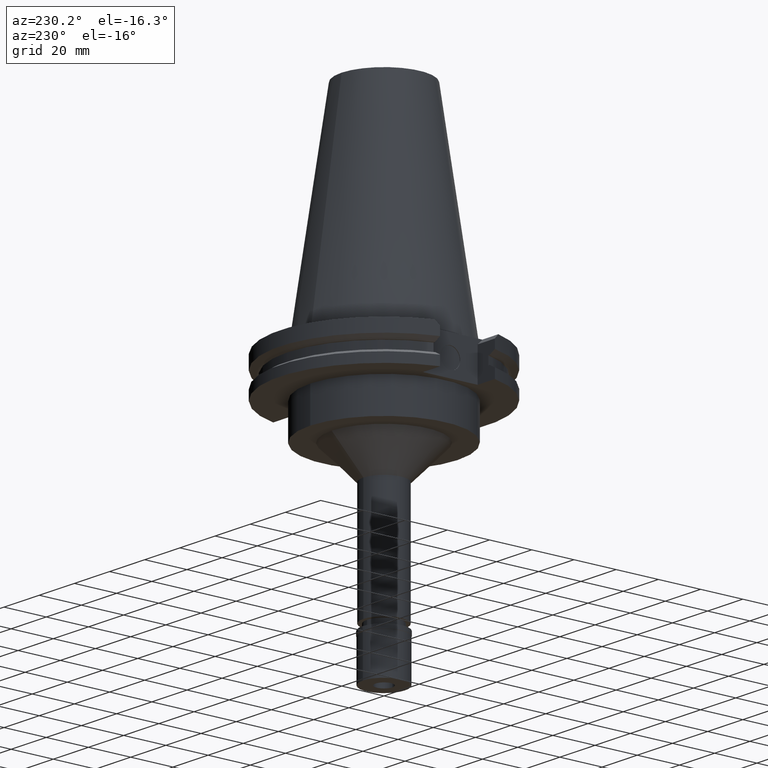
[diagram: clean part render]
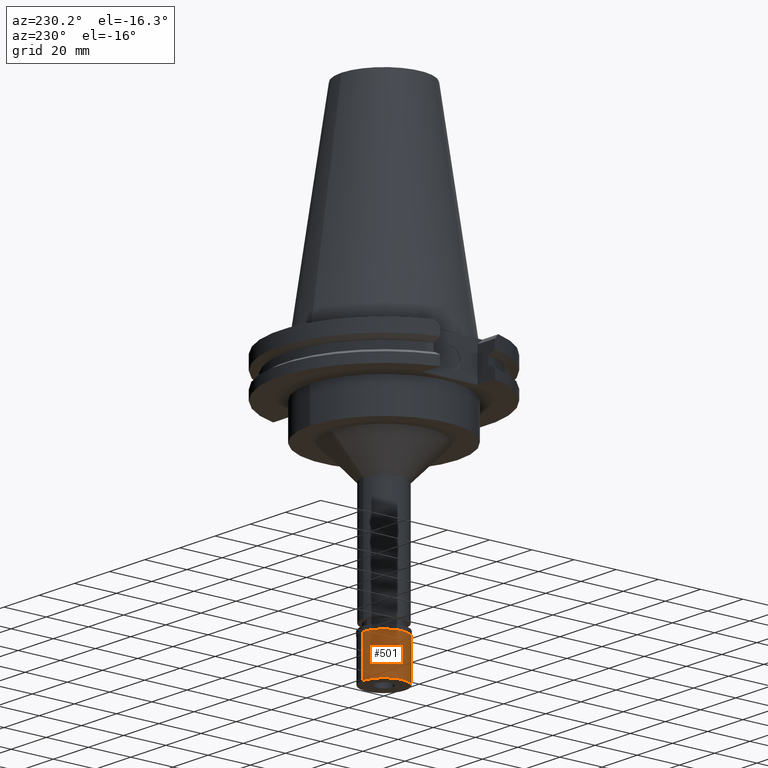
[diagram: same view with one face highlighted and labeled with its STEP entity id]
A machine part, auxiliary view. The second image highlights one B-rep face of the part: STEP entity #501.
In plain terms, the highlighted cylindrical surface (edge-blend (fillet) strip) has radius 10 mm, axis along (0, 0, -1).
Its self-contained STEP definition (entity closure, byte-faithful):
#203 = AXIS2_PLACEMENT_3D ( 'NONE', #3310, #2064, #1548 ) ;
#219 = VERTEX_POINT ( 'NONE', #1404 ) ;
#295 = CARTESIAN_POINT ( 'NONE',  ( 0.0000000000000000000, 10.00000000000000000, -2.100000000000000089 ) ) ;
#387 = CIRCLE ( 'NONE', #2614, 10.00000000000000000 ) ;
#389 = CARTESIAN_POINT ( 'NONE',  ( 0.0000000000000000000, -10.00000000000000000, -2.100000000000000089 ) ) ;
#465 = VERTEX_POINT ( 'NONE', #2359 ) ;
#501 = ADVANCED_FACE ( 'NONE', ( #3044 ), #749, .T. ) ;
#515 = DIRECTION ( 'NONE',  ( 0.0000000000000000000, 0.0000000000000000000, -1.000000000000000000 ) ) ;
#534 = LINE ( 'NONE', #1006, #2045 ) ;
#547 = EDGE_CURVE ( 'NONE', #2893, #219, #753, .T. ) ;
#749 = CYLINDRICAL_SURFACE ( 'NONE', #203, 10.00000000000000000 ) ;
#753 = CIRCLE ( 'NONE', #2992, 10.00000000000000000 ) ;
#760 = DIRECTION ( 'NONE',  ( 0.0000000000000000000, 0.0000000000000000000, -1.000000000000000000 ) ) ;
#777 = ORIENTED_EDGE ( 'NONE', *, *, #2093, .T. ) ;
#783 = EDGE_CURVE ( 'NONE', #2009, #2893, #534, .T. ) ;
#828 = ORIENTED_EDGE ( 'NONE', *, *, #547, .T. ) ;
#861 = EDGE_LOOP ( 'NONE', ( #828, #950, #777, #2813 ) ) ;
#950 = ORIENTED_EDGE ( 'NONE', *, *, #1179, .F. ) ;
#976 = DIRECTION ( 'NONE',  ( 0.0000000000000000000, 1.000000000000000000, 0.0000000000000000000 ) ) ;
#1006 = CARTESIAN_POINT ( 'NONE',  ( 0.0000000000000000000, 10.00000000000000000, -2.100000000000000089 ) ) ;
#1179 = EDGE_CURVE ( 'NONE', #465, #219, #2693, .T. ) ;
#1404 = CARTESIAN_POINT ( 'NONE',  ( 0.0000000000000000000, -10.00000000000000000, -20.60000000000000142 ) ) ;
#1548 = DIRECTION ( 'NONE',  ( 0.0000000000000000000, -1.000000000000000000, 0.0000000000000000000 ) ) ;
#1933 = CARTESIAN_POINT ( 'NONE',  ( 0.0000000000000000000, 0.0000000000000000000, -2.100000000000000089 ) ) ;
#2009 = VERTEX_POINT ( 'NONE', #295 ) ;
#2045 = VECTOR ( 'NONE', #515, 1000.000000000000000 ) ;
#2064 = DIRECTION ( 'NONE',  ( 0.0000000000000000000, 0.0000000000000000000, -1.000000000000000000 ) ) ;
#2093 = EDGE_CURVE ( 'NONE', #465, #2009, #387, .T. ) ;
#2173 = DIRECTION ( 'NONE',  ( 0.0000000000000000000, 0.0000000000000000000, -1.000000000000000000 ) ) ;
#2243 = CARTESIAN_POINT ( 'NONE',  ( 0.0000000000000000000, 0.0000000000000000000, -20.60000000000000142 ) ) ;
#2359 = CARTESIAN_POINT ( 'NONE',  ( 0.0000000000000000000, -10.00000000000000000, -2.100000000000000089 ) ) ;
#2548 = DIRECTION ( 'NONE',  ( 0.0000000000000000000, 0.0000000000000000000, 1.000000000000000000 ) ) ;
#2614 = AXIS2_PLACEMENT_3D ( 'NONE', #1933, #2173, #3197 ) ;
#2693 = LINE ( 'NONE', #389, #2930 ) ;
#2813 = ORIENTED_EDGE ( 'NONE', *, *, #783, .T. ) ;
#2881 = CARTESIAN_POINT ( 'NONE',  ( 0.0000000000000000000, 10.00000000000000000, -20.60000000000000142 ) ) ;
#2893 = VERTEX_POINT ( 'NONE', #2881 ) ;
#2930 = VECTOR ( 'NONE', #760, 1000.000000000000000 ) ;
#2992 = AXIS2_PLACEMENT_3D ( 'NONE', #2243, #2548, #976 ) ;
#3044 = FACE_OUTER_BOUND ( 'NONE', #861, .T. ) ;
#3197 = DIRECTION ( 'NONE',  ( 0.0000000000000000000, -1.000000000000000000, 0.0000000000000000000 ) ) ;
#3310 = CARTESIAN_POINT ( 'NONE',  ( 0.0000000000000000000, 0.0000000000000000000, 0.0000000000000000000 ) ) ;